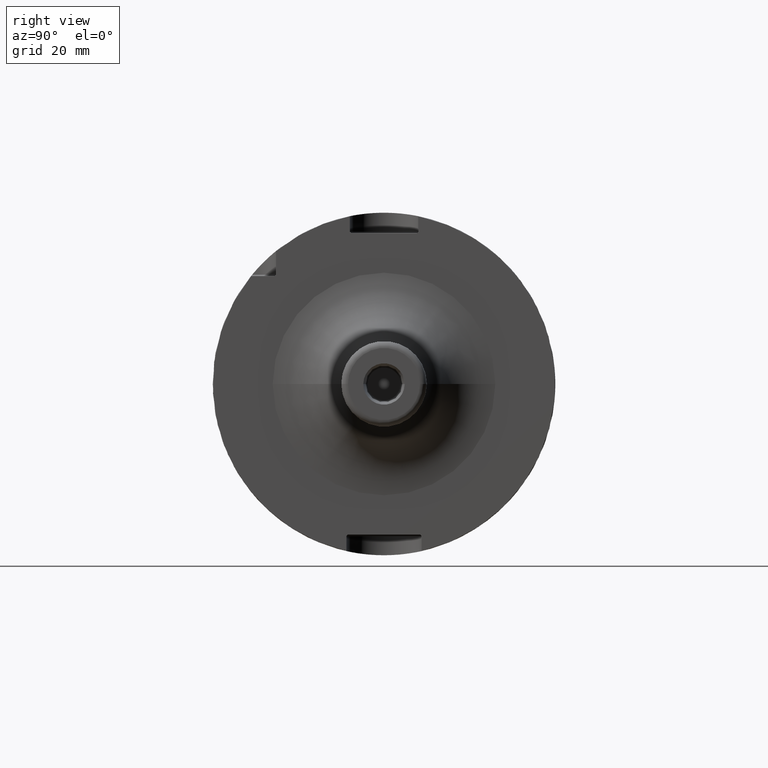
[diagram: clean part render]
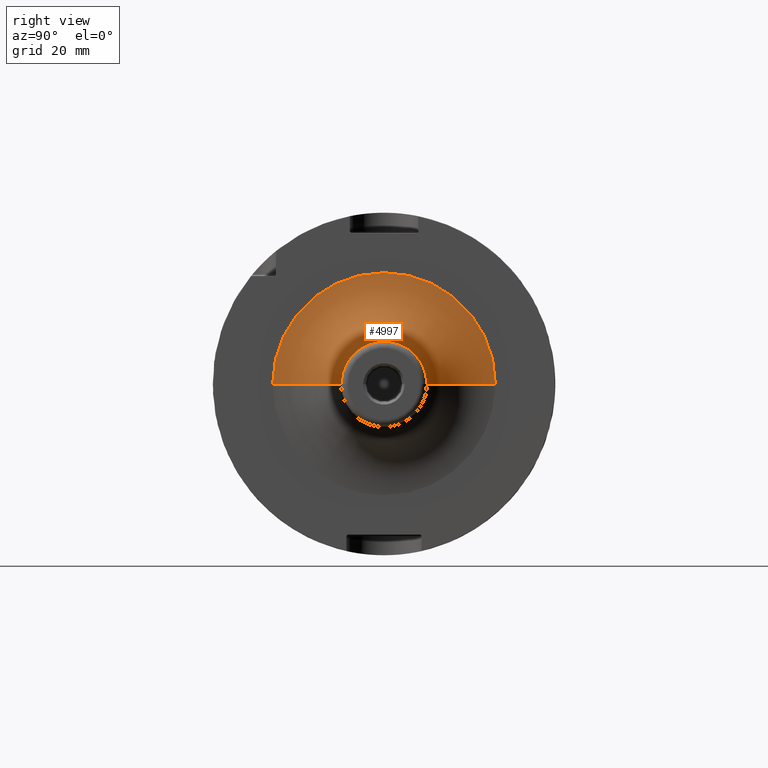
[diagram: same view with one face highlighted and labeled with its STEP entity id]
A machine part, right view. The second image highlights one B-rep face of the part: STEP entity #4997.
In plain terms, the highlighted toroidal blend (fillet) surface has major radius 32.5 mm and minor (blend) radius 20 mm.
Its self-contained STEP definition (entity closure, byte-faithful):
#1096=CARTESIAN_POINT('',(2.9E1,0.E0,0.E0));
#1097=DIRECTION('',(1.E0,0.E0,0.E0));
#1098=DIRECTION('',(0.E0,1.E0,0.E0));
#1099=AXIS2_PLACEMENT_3D('',#1096,#1097,#1098);
#1810=CARTESIAN_POINT('',(4.9E1,-3.25E1,2.270544863237E-12));
#1811=DIRECTION('',(0.E0,-6.986338590975E-14,-1.E0));
#1812=DIRECTION('',(-1.E0,0.E0,0.E0));
#1813=AXIS2_PLACEMENT_3D('',#1810,#1811,#1812);
#1815=CARTESIAN_POINT('',(4.9E1,3.25E1,-2.274680444003E-12));
#1816=DIRECTION('',(0.E0,6.999088808524E-14,1.E0));
#1817=DIRECTION('',(-1.E0,0.E0,0.E0));
#1818=AXIS2_PLACEMENT_3D('',#1815,#1816,#1817);
#1825=CARTESIAN_POINT('',(4.9E1,0.E0,0.E0));
#1826=DIRECTION('',(1.E0,0.E0,0.E0));
#1827=DIRECTION('',(0.E0,1.E0,0.E0));
#1828=AXIS2_PLACEMENT_3D('',#1825,#1826,#1827);
#3125=CARTESIAN_POINT('',(2.9E1,-3.25E1,0.E0));
#3126=CARTESIAN_POINT('',(2.9E1,3.25E1,0.E0));
#3127=VERTEX_POINT('',#3125);
#3128=VERTEX_POINT('',#3126);
#3129=CARTESIAN_POINT('',(4.9E1,-1.25E1,0.E0));
#3130=CARTESIAN_POINT('',(4.9E1,1.25E1,0.E0));
#3131=VERTEX_POINT('',#3129);
#3132=VERTEX_POINT('',#3130);
#4985=CARTESIAN_POINT('',(4.9E1,0.E0,0.E0));
#4986=DIRECTION('',(1.E0,0.E0,0.E0));
#4987=DIRECTION('',(0.E0,9.999810843814E-1,-6.150681218393E-3));
#4988=AXIS2_PLACEMENT_3D('',#4985,#4986,#4987);
#4989=TOROIDAL_SURFACE('',#4988,3.25E1,2.E1);
#4990=ORIENTED_EDGE('',*,*,#4252,.F.);
#4991=ORIENTED_EDGE('',*,*,#4980,.T.);
#4993=ORIENTED_EDGE('',*,*,#4992,.T.);
#4994=ORIENTED_EDGE('',*,*,#4976,.F.);
#4995=EDGE_LOOP('',(#4990,#4991,#4993,#4994));
#4996=FACE_OUTER_BOUND('',#4995,.F.);
#4997=ADVANCED_FACE('',(#4996),#4989,.F.);
#1100=CIRCLE('',#1099,3.25E1);
#1814=CIRCLE('',#1813,2.E1);
#1819=CIRCLE('',#1818,2.E1);
#1829=CIRCLE('',#1828,1.25E1);
#4252=EDGE_CURVE('',#3128,#3127,#1100,.T.);
#4976=EDGE_CURVE('',#3127,#3131,#1814,.T.);
#4980=EDGE_CURVE('',#3128,#3132,#1819,.T.);
#4992=EDGE_CURVE('',#3132,#3131,#1829,.T.);